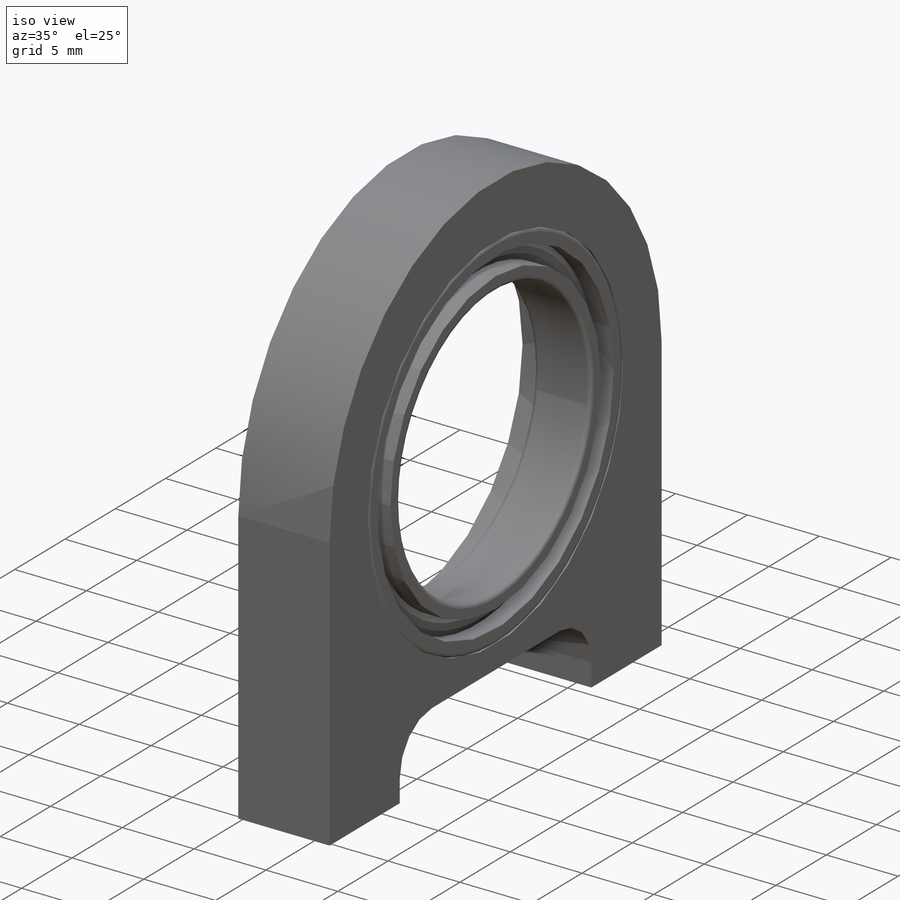
[diagram: iso view]
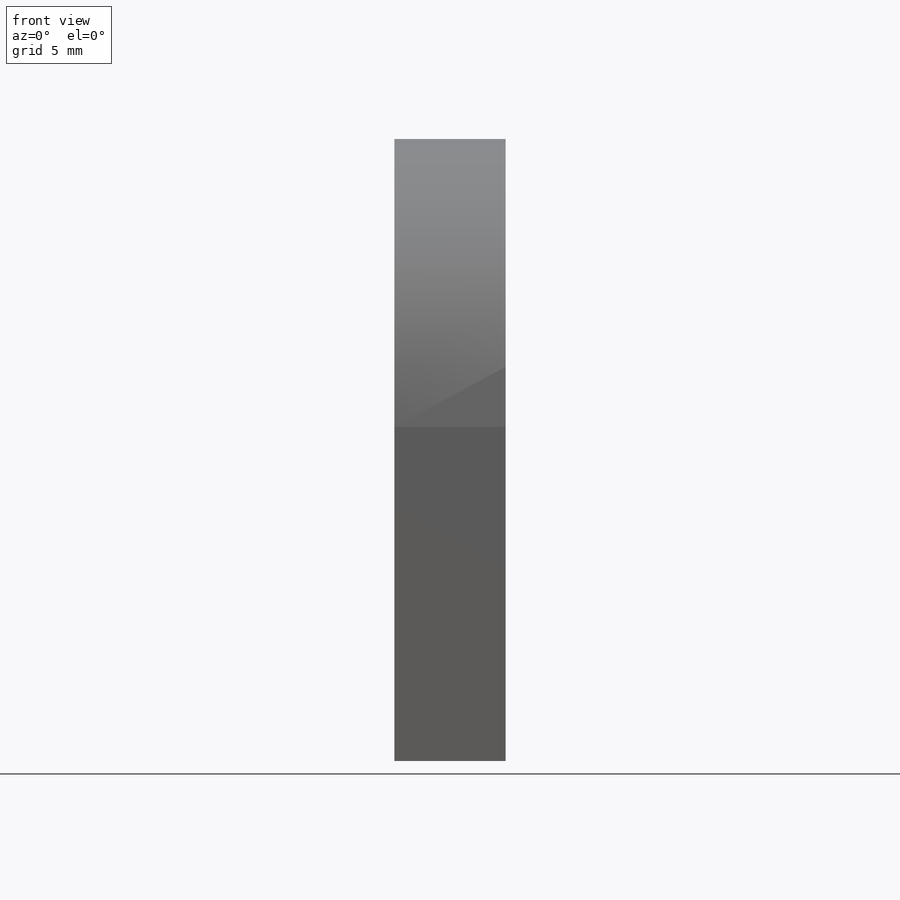
[diagram: front view]
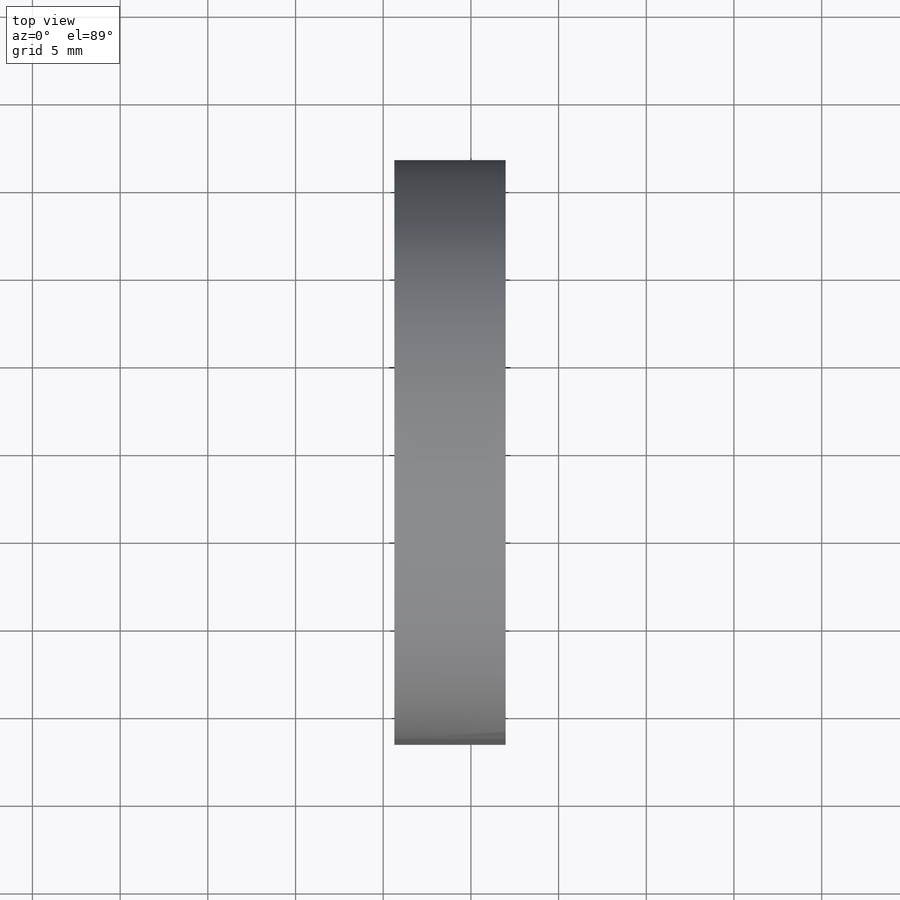
[diagram: top view]
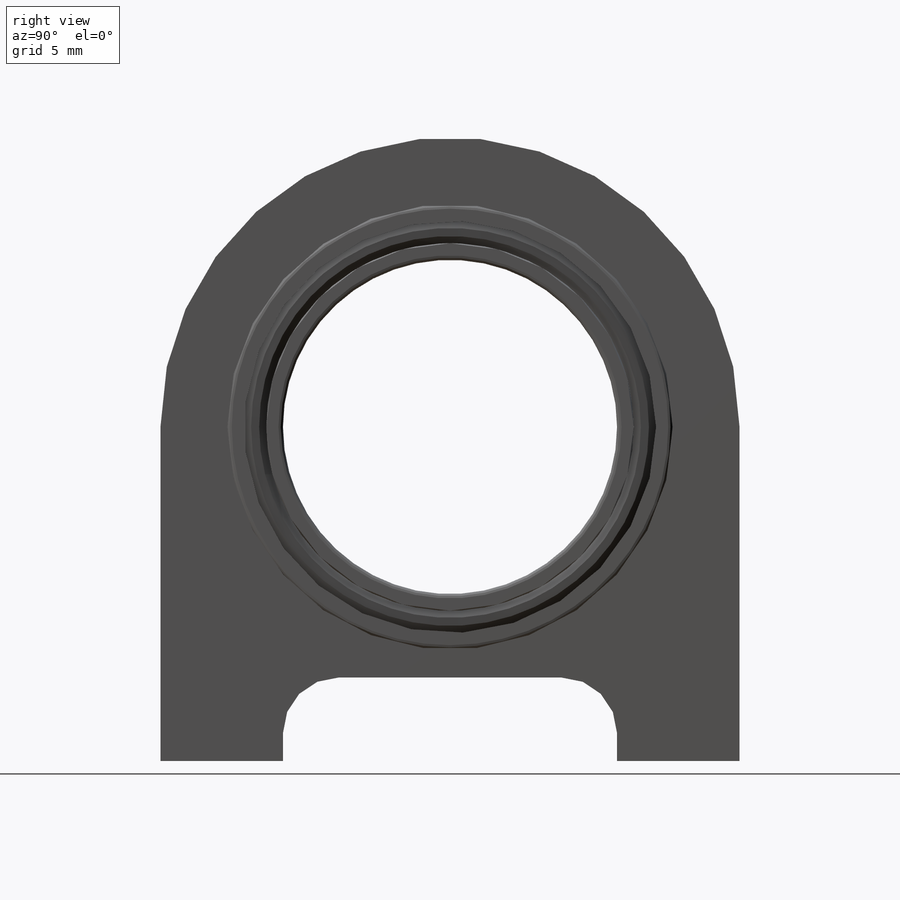
[diagram: right view]
SOLIDWORKS PART (.sldprt)
format: sldprt  version: not decoded by parser v0  size: 462,848 bytes
history: native  units: mm
features: sketch x13, plane x3, revolve x3, extrude x2, thread x2, material x1, hole x1 (+10 scaffold rows collapsed)
feature tree (35):
  scaffold x10  (default folders/planes/origin — collapsed)
  material  "6061 Alloy"
  plane  "Plane1"
  plane  "Plane2"
  plane  "Plane3"
  sketch  "Clipboard"  dims[c1.BallCLRad=22.225mm c2.BallCLRad=11.1125mm c2.D2=20.0mm c2.Count=2.0deg c2.D3=~22.36068mm c2.Show_count=2.0deg c2.D1=20.0mm c2.Max_count=2.0deg c3.D1=20.0mm c3.Min_count=1.0deg]
  sketch  "CagSpiSke"  dims[Thickness=0.1905mm OD=22.5425mm ID=21.9075mm]
  revolve  "CageSpine"  Angle=0.001deg
  sketch  "CagBalSke"  dims[CageWallOD=2.0955mm BallCLRad=11.1125mm]
  sketch  "CagTrmODSke"  dims[Width=2.1463mm ID=22.5425mm OD=24.3713mm]
  sketch  "CagTrmIDSke"  dims[ID=20.1803mm OD=21.9075mm Width=2.1463mm]
  sketch  "BalSimSke"  dims[Ball_diameter=1.905mm BallCLRad=11.1125mm D1=360.0deg]
  sketch  "BalDetSke"  dims[Ball_diameter=1.905mm BallCLRad=11.1125mm]
  sketch  "InnRacSke"  dims[Fillet_radius=0.254mm Ball_diameter=1.8542mm ID=19.05mm OD=20.955mm Width=~3.96748mm BallCLRad=11.1125mm Skew=0.0254mm D1=360.0deg]
  sketch  "OutRacSke"  dims[c1.Fillet_radius=0.254mm c1.Ball_diameter=1.8542mm c1.OD=25.4mm c1.ID=23.495mm c1.Width=~3.96748mm c1.BallCLRad=11.1125mm c1.D1=360.0deg c1.CurrentVersion=0.0mm c1.EditFunction=0.0mm c1.Type=0.0mm c1.SubType=0.0mm c1.Application=0.0mm c2.CurrentVersion=0.0mm c2.EditFunction=0.0mm c2.Type=0.0mm c2.SubType=0.0mm c2.STANDARD=0.0mm c2.TYPE=0.0mm c2.SIZE=0.0mm c2.DRAW_CAGE=0.0mm c2.AUTO_SAVE=0.0mm c2.CREATION_METHOD=0.0mm c2.LOCATION_METHOD=0.0mm]
  revolve  "CimBearingSettings6.0"  STANDARD=0mm TYPE=0mm SIZE=0mm DRAW_CAGE=0mm AUTO_SAVE=0mm CREATION_METHOD=0mm LOCATION_METHOD=0mm PartNumberID=0mm ConfigurationName=0mm CopiedFlag=1  [1 undecoded]
  revolve  "SolidworksEditDefinition"  PartNumberID=0mm ConfigurationName=0mm CopiedFlag=0  [1 undecoded]
  sketch  "Sketch1"  dims[D1=33.02mm D3=25.4mm D6=3.175mm D2=19.05mm D4=4.7625mm D5=19.05mm]
  extrude  "Boss-Extrude1"  Depth=6.35mm
  sketch  "Sketch2"
  extrude  "Boss-Extrude2"  [1 undecoded]
  hole  "#6-32 Tapped Hole1"  Diameter=2.7051mm Depth=9.38784mm
  sketch  "Sketch4"  dims[D1=3.175mm D2=19.05mm D3=19.05mm]
  sketch  "Sketch3"  dims[hole-wizard template sketch: 47 standard entries collapsed; hole parameters kept: c15.Tap Drill Depth=~9.38784mm c15.D3=~14.816244mm c15.Drill Angle=118.0deg]
  thread  "Hole Thread1"  Diameter=7.0104mm  [1 undecoded]
  thread  "Hole Thread2"  Diameter=7.0104mm  [1 undecoded]
decode coverage: 19 of 21 modeling features carry decoded parameters
note: ~ marks probable driven/reference dimensions
note: 5 parameter values undecoded
summary: no parameter record found for 3 features
note: suppression state not decoded; provenance and decode notes live in map.json
